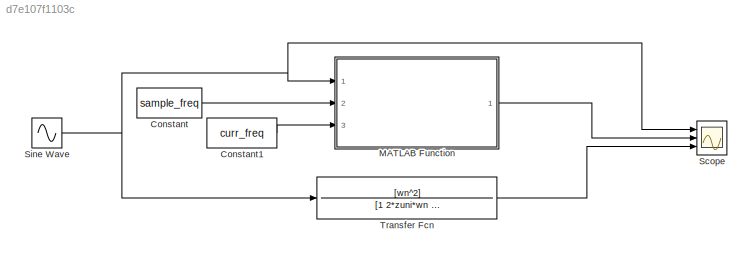
MODEL slx_d7e107f1103c
KIND model
CONFIG AbsTol = auto
CONFIG EnableMultiTasking = off
CONFIG FixedStep = Tn
CONFIG MaxStep = auto
CONFIG MinStep = auto
CONFIG RelTol = 1e-3
CONFIG SampleTimeConstraint = Unconstrained
CONFIG Solver = ode1
CONFIG SolverName = ode1
CONFIG StartTime = 0.0
CONFIG StopTime = 10
BLOCK [Constant] Constant
  Value = sample_freq
BLOCK [Constant] Constant1
  Value = curr_freq
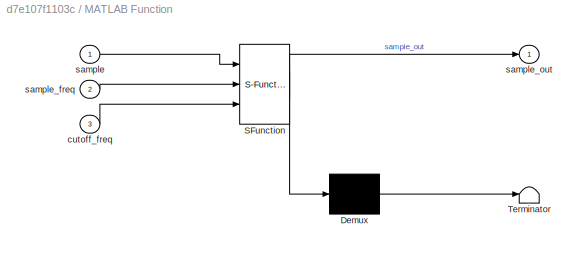
BLOCK [SubSystem] MATLAB Function
  ErrorFcn = Stateflow.Translate.translate
  PermitHierarchicalResolution = ExplicitOnly
  Ports = [3, 1]
  RequestExecContextInheritance = off
  SFBlockType = MATLAB Function
  TreatAsAtomicUnit = on
BLOCK [Demux] MATLAB Function/ Demux 
  Outputs = 1
  Ports = [1, 1]
BLOCK [S-Function] MATLAB Function/ SFunction 
  EnableBusSupport = on
  FunctionName = sf_sfun
  PortCounts = [3 2]
  Ports = [3, 2]
  SFcnIsStateOwnerBlock = off
  SFunctionDeploymentMode = off
  Tag = Stateflow S-Function 2
BLOCK [Terminator] MATLAB Function/ Terminator 
BLOCK [Inport] MATLAB Function/cutoff_freq
  IconDisplay = Port number
  Port = 3
BLOCK [Inport] MATLAB Function/sample
  IconDisplay = Port number
BLOCK [Inport] MATLAB Function/sample_freq
  IconDisplay = Port number
  Port = 2
BLOCK [Outport] MATLAB Function/sample_out
  IconDisplay = Port number
BLOCK [Scope] Scope
  Floating = off
  NumInputPorts = 3
  Ports = [3]
  ScopeSpecificationString = Simulink.scopes.TimeScopeBlockCfg('CurrentConfiguration', extmgr.ConfigurationSet(extmgr.Configuration('Core','General UI',true),extmgr.Configuration('Core','Source UI',true),extmgr.Configuration('Sources','WiredSimulink',true),extmgr.Configuration('Visuals','Time Domain',true,'SerializedDisplays',{struct('MinYLimReal','-1.25','MaxYLimReal','1.25','YLabelReal','','MinYLimMag','0.00000','MaxYLimMag...<+1699ch>
BLOCK [Sin] Sine Wave
  Frequency = 2*pi*2
  Ports = [0, 1]
  SampleTime = Tn
BLOCK [TransferFcn] Transfer Fcn
  Commented = on
  Denominator = [1 2*zuni*wn wn^2]
  Numerator = [wn^2]
LINE Constant1:1 -> MATLAB Function:3
LINE Constant:1 -> MATLAB Function:2
LINE MATLAB Function:1 -> Scope:2
NET Sine Wave:1 -> MATLAB Function:1, Scope:1, Transfer Fcn:1
LINE Transfer Fcn:1 -> Scope:3
note: NET lines group one-source signal fan-out (src -> all destinations, sorted); 1:1 wires keep LINE
CHART MATLAB Function states=1 transitions=1
  STATE_LABEL 'eML_blk_kernel()'
  STATE_LABEL 'SCRIPT:\nfunction sample_out = LowPassFilter2p(sample,sample_freq,  cutoff_freq)\n\npersistent params\n    if isempty(params)\n    params=compute_params( sample_freq,  cutoff_freq);\n    end\nsample_out= DigitalBiquadFilter_apply(sample, params); \n\n'
